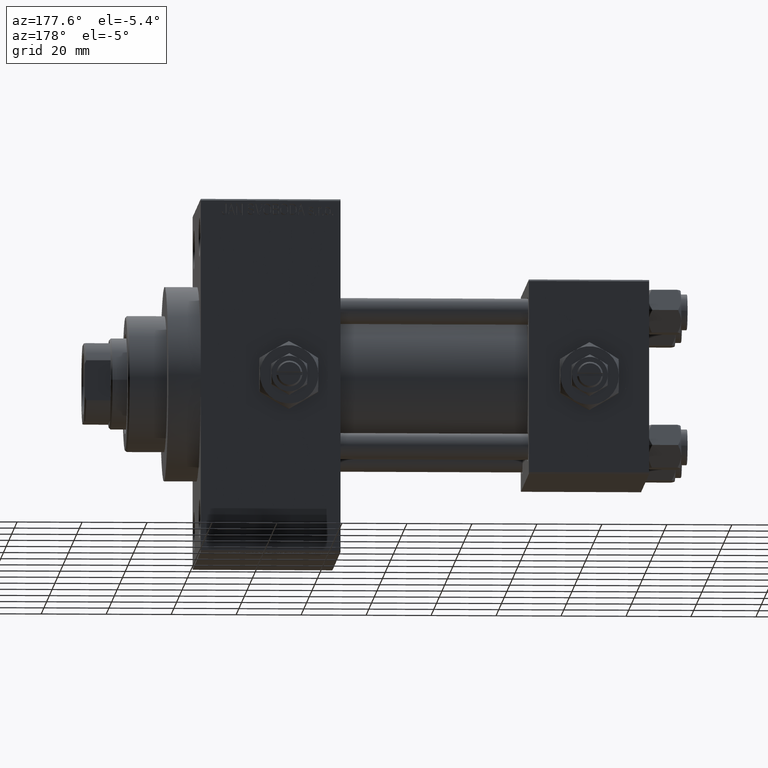
[diagram: clean part render]
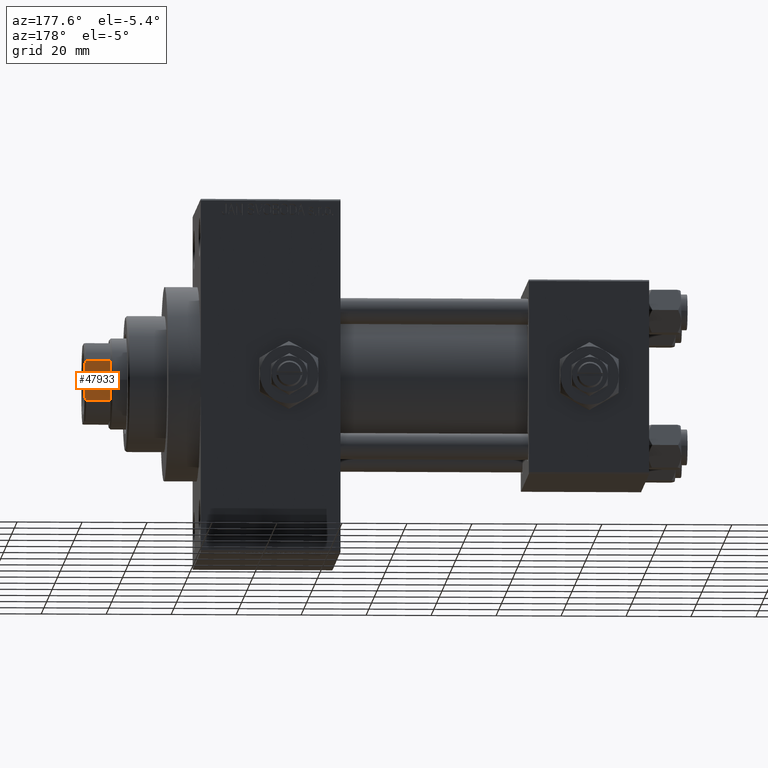
[diagram: same view with one face highlighted and labeled with its STEP entity id]
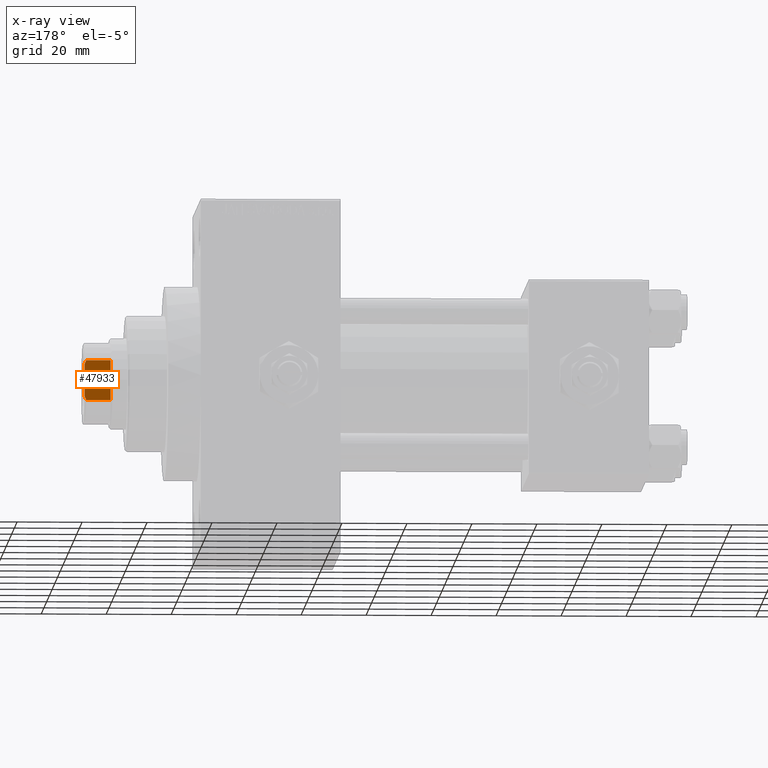
[diagram: x-ray of the same camera — body ghosted, the highlighted face saturated]
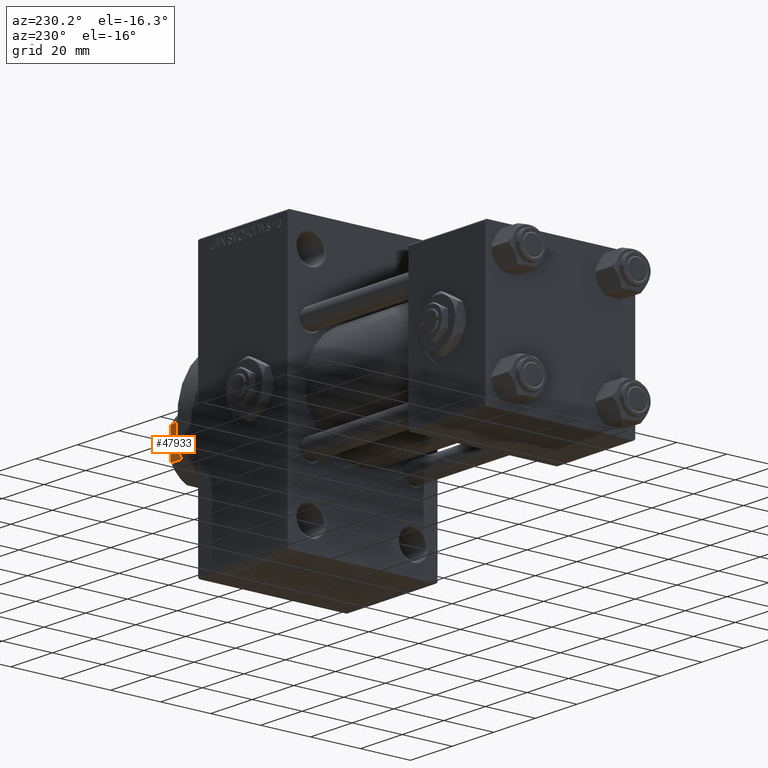
[diagram: same view with one face highlighted and labeled with its STEP entity id]
A machine part, auxiliary view. The second image highlights one B-rep face of the part: STEP entity #47933.
The next image is the same camera in x-ray: the body ghosted, the highlighted face saturated — about 0% of this face is hidden behind the body in this view.
A second angle (auxiliary view) of the same face is appended — the face is thin or edge-on in the first view.
In plain terms, the highlighted planar face has unit normal (0, -1, -0).
Its self-contained STEP definition (entity closure, byte-faithful):
#1331 = DIRECTION ( 'NONE',  ( 1.000000000000000000, 7.228014483236695816E-17, -0.000000000000000000 ) ) ;
#2370 = EDGE_CURVE ( 'NONE', #20189, #27099, #24256, .T. ) ;
#3504 = CARTESIAN_POINT ( 'NONE',  ( -11.99999999999999822, -6.184658438426491323, -0.001000000000001000089 ) ) ;
#3756 = DIRECTION ( 'NONE',  ( -0.000000000000000000, -0.000000000000000000, 1.000000000000000000 ) ) ;
#3883 = CARTESIAN_POINT ( 'NONE',  ( -11.99999999999999645, 6.184658438426496652, -0.001000000000001000089 ) ) ;
#5130 = VECTOR ( 'NONE', #11304, 1000.000000000000000 ) ;
#5733 = EDGE_CURVE ( 'NONE', #20189, #32057, #43004, .T. ) ;
#9083 = CARTESIAN_POINT ( 'NONE',  ( -11.99999999999999822, -6.184658438426491323, 135.5000000000000284 ) ) ;
#9903 = CARTESIAN_POINT ( 'NONE',  ( -11.99999999999999645, 6.184658438426496652, 135.5000000000000000 ) ) ;
#10180 = CARTESIAN_POINT ( 'NONE',  ( -11.99999999999999822, -6.184658438426491323, 135.5000000000000284 ) ) ;
#10428 = CARTESIAN_POINT ( 'NONE',  ( -12.00000000000000000, -5.000000000000039968, 136.0000000000000000 ) ) ;
#11304 = DIRECTION ( 'NONE',  ( 7.228014483236695816E-17, -1.000000000000000000, 0.000000000000000000 ) ) ;
#11394 = VECTOR ( 'NONE', #31270, 1000.000000000000000 ) ;
#13792 = ORIENTED_EDGE ( 'NONE', *, *, #29979, .T. ) ;
#14388 = CARTESIAN_POINT ( 'NONE',  ( -12.00000000000000000, 5.400255697127776422, 135.8460555011047006 ) ) ;
#17245 = ORIENTED_EDGE ( 'NONE', *, *, #5733, .F. ) ;
#17389 = CARTESIAN_POINT ( 'NONE',  ( -11.99999999999999645, 6.184658438426495763, 128.0000000000000853 ) ) ;
#17653 = CARTESIAN_POINT ( 'NONE',  ( -11.99999999999999822, -5.400255697127819943, 135.8460555011047006 ) ) ;
#19700 = EDGE_CURVE ( 'NONE', #27099, #41572, #30649, .T. ) ;
#20028 = FACE_OUTER_BOUND ( 'NONE', #20784, .T. ) ;
#20189 = VERTEX_POINT ( 'NONE', #17389 ) ;
#20403 = B_SPLINE_CURVE_WITH_KNOTS ( 'NONE', 3,
 ( #10180, #43820, #17653, #10428 ),
 .UNSPECIFIED., .F., .F.,
 ( 4, 4 ),
 ( 0.000000000000000000, 0.001285852097146078597 ),
 .UNSPECIFIED. ) ;
#20784 = EDGE_LOOP ( 'NONE', ( #39070, #24475, #45201, #13792, #17245, #40358 ) ) ;
#22456 = CARTESIAN_POINT ( 'NONE',  ( -12.00000000000000000, 4.999999999999979572, 136.0000000000000000 ) ) ;
#22944 = EDGE_CURVE ( 'NONE', #42731, #41046, #30459, .T. ) ;
#24256 = LINE ( 'NONE', #47176, #47893 ) ;
#24475 = ORIENTED_EDGE ( 'NONE', *, *, #48331, .T. ) ;
#25732 = VECTOR ( 'NONE', #3756, 1000.000000000000000 ) ;
#26759 = CARTESIAN_POINT ( 'NONE',  ( -12.00000000000000000, 11.99999999999999645, 136.0000000000000000 ) ) ;
#27099 = VERTEX_POINT ( 'NONE', #47194 ) ;
#29744 = CARTESIAN_POINT ( 'NONE',  ( -12.00000000000000000, 11.99999999999999645, 136.0000000000000000 ) ) ;
#29979 = EDGE_CURVE ( 'NONE', #42731, #32057, #41671, .T. ) ;
#30459 = LINE ( 'NONE', #29744, #5130 ) ;
#30649 = LINE ( 'NONE', #3504, #25732 ) ;
#30985 = PLANE ( 'NONE',  #45055 ) ;
#31270 = DIRECTION ( 'NONE',  ( -0.000000000000000000, -0.000000000000000000, 1.000000000000000000 ) ) ;
#32057 = VERTEX_POINT ( 'NONE', #40938 ) ;
#33062 = CARTESIAN_POINT ( 'NONE',  ( -12.00000000000000000, 5.794808544282239460, 135.6785991435214100 ) ) ;
#35205 = DIRECTION ( 'NONE',  ( -7.228014483236695816E-17, 1.000000000000000000, 0.000000000000000000 ) ) ;
#35705 = DIRECTION ( 'NONE',  ( 7.228014483236695816E-17, -1.000000000000000000, 0.000000000000000000 ) ) ;
#39070 = ORIENTED_EDGE ( 'NONE', *, *, #19700, .T. ) ;
#40354 = CARTESIAN_POINT ( 'NONE',  ( -12.00000000000000000, -5.000000000000039968, 136.0000000000000000 ) ) ;
#40358 = ORIENTED_EDGE ( 'NONE', *, *, #2370, .T. ) ;
#40938 = CARTESIAN_POINT ( 'NONE',  ( -11.99999999999999645, 6.184658438426496652, 135.5000000000000000 ) ) ;
#41046 = VERTEX_POINT ( 'NONE', #40354 ) ;
#41288 = CARTESIAN_POINT ( 'NONE',  ( -12.00000000000000000, 4.999999999999979572, 136.0000000000000000 ) ) ;
#41572 = VERTEX_POINT ( 'NONE', #9083 ) ;
#41671 = B_SPLINE_CURVE_WITH_KNOTS ( 'NONE', 3,
 ( #41288, #14388, #33062, #9903 ),
 .UNSPECIFIED., .F., .F.,
 ( 4, 4 ),
 ( 0.000000000000000000, 0.001285852097146151889 ),
 .UNSPECIFIED. ) ;
#42731 = VERTEX_POINT ( 'NONE', #22456 ) ;
#43004 = LINE ( 'NONE', #3883, #11394 ) ;
#43820 = CARTESIAN_POINT ( 'NONE',  ( -11.99999999999999822, -5.794808544282251894, 135.6785991435214385 ) ) ;
#45055 = AXIS2_PLACEMENT_3D ( 'NONE', #26759, #1331, #35205 ) ;
#45201 = ORIENTED_EDGE ( 'NONE', *, *, #22944, .F. ) ;
#47176 = CARTESIAN_POINT ( 'NONE',  ( -12.00000000000000000, 11.99999999999999645, 128.0000000000000000 ) ) ;
#47194 = CARTESIAN_POINT ( 'NONE',  ( -11.99999999999999822, -6.184658438426491323, 128.0000000000000853 ) ) ;
#47893 = VECTOR ( 'NONE', #35705, 1000.000000000000000 ) ;
#47933 = ADVANCED_FACE ( 'NONE', ( #20028 ), #30985, .F. ) ;
#48331 = EDGE_CURVE ( 'NONE', #41572, #41046, #20403, .T. ) ;